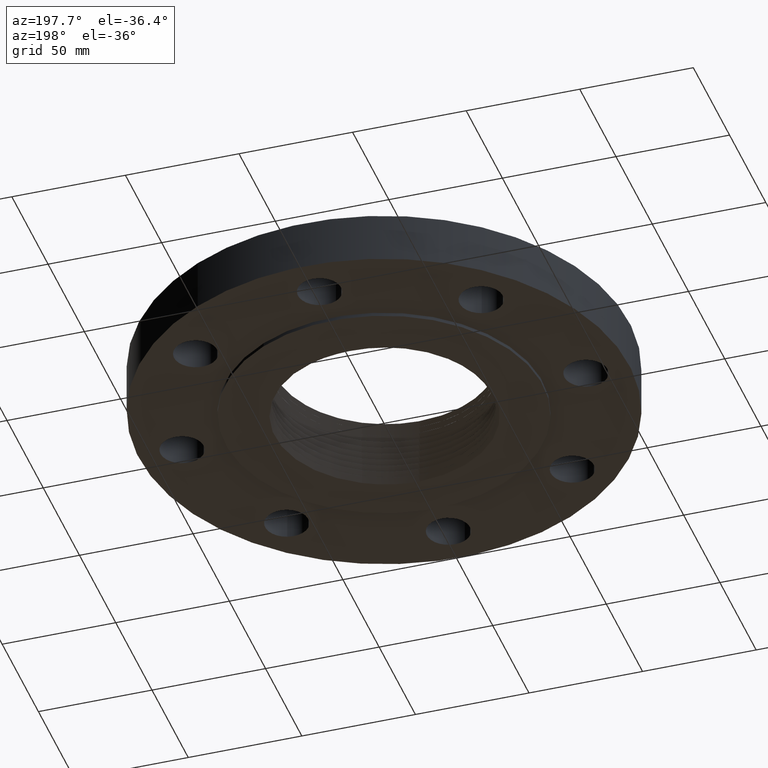
[diagram: clean part render]
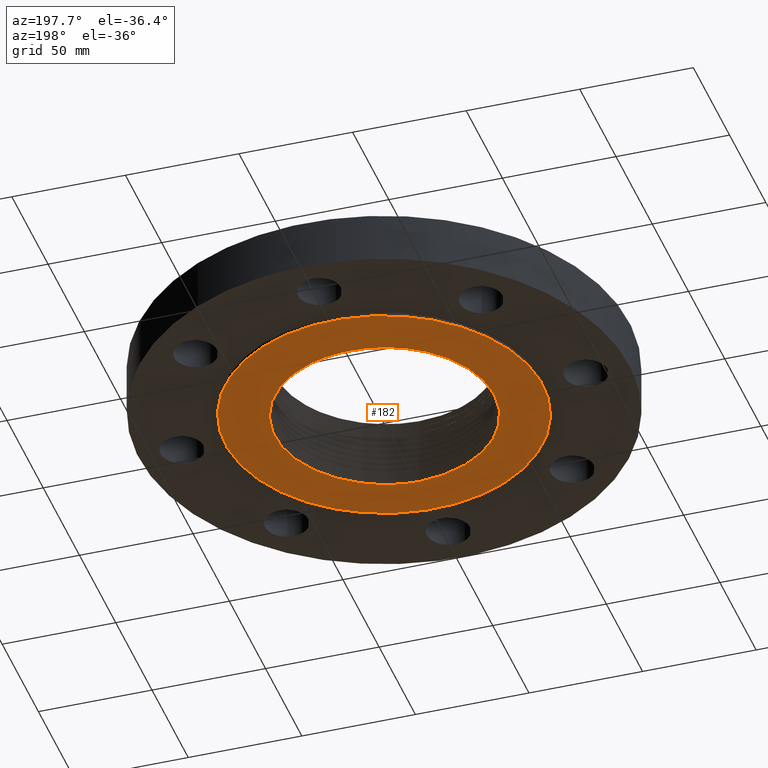
[diagram: same view with one face highlighted and labeled with its STEP entity id]
A machine part, auxiliary view. The second image highlights one B-rep face of the part: STEP entity #182.
In plain terms, the highlighted planar face has unit normal (0, 0, -1).
Its self-contained STEP definition (entity closure, byte-faithful):
#38=AXIS2_PLACEMENT_3D('Plane Axis2P3D',#35,#36,#37) ;
#42=AXIS2_PLACEMENT_3D('Circle Axis2P3D',#40,#41,$) ;
#51=AXIS2_PLACEMENT_3D('Circle Axis2P3D',#49,#50,$) ;
#170=AXIS2_PLACEMENT_3D('Circle Axis2P3D',#168,#169,$) ;
#35=CARTESIAN_POINT('Axis2P3D Location',(0.,0.,-0.0625000000003)) ;
#40=CARTESIAN_POINT('Axis2P3D Location',(0.,0.,-0.0625000000003)) ;
#44=CARTESIAN_POINT('Vertex',(1.31842023117,2.41335204521,-0.0625000000002)) ;
#46=CARTESIAN_POINT('Vertex',(-1.31842023117,-2.41335204521,-0.0625000000002)) ;
#49=CARTESIAN_POINT('Axis2P3D Location',(0.,0.,-0.0625000000003)) ;
#59=CARTESIAN_POINT('Control Point',(0.0632607786047,1.85358153076,-0.0625000000003)) ;
#60=CARTESIAN_POINT('Control Point',(0.0506204660169,1.85422008428,-0.0625000000003)) ;
#61=CARTESIAN_POINT('Control Point',(0.0379740254995,1.85475087487,-0.0625000000003)) ;
#62=CARTESIAN_POINT('Control Point',(0.0253234245955,1.85517378517,-0.0625000000003)) ;
#63=CARTESIAN_POINT('Control Point',(0.0126704092793,1.85548873648,-0.0625000000003)) ;
#64=CARTESIAN_POINT('Control Point',(1.47429189867E-005,1.8556957854,-0.0625000000003)) ;
#65=CARTESIAN_POINT('Vertex',(0.0632607874348,1.85358164722,-0.0625000000019)) ;
#67=CARTESIAN_POINT('Vertex',(1.4742918988E-005,1.8556957854,-0.0625000000002)) ;
#71=CARTESIAN_POINT('Control Point',(-0.896931056406,1.64184729013,-0.0625000000003)) ;
#72=CARTESIAN_POINT('Control Point',(-0.764548019765,1.7114038071,-0.0625000000003)) ;
#73=CARTESIAN_POINT('Control Point',(-0.625320338015,1.76767548598,-0.0625000000003)) ;
#74=CARTESIAN_POINT('Control Point',(-0.481016176806,1.8097492435,-0.0625000000003)) ;
#75=CARTESIAN_POINT('Control Point',(-0.296941806607,1.84386266499,-0.0625000000003)) ;
#76=CARTESIAN_POINT('Control Point',(-0.111115404837,1.85474103152,-0.0625000000003)) ;
#77=CARTESIAN_POINT('Control Point',(-0.0740697694716,1.85598362024,-0.0625000000003)) ;
#78=CARTESIAN_POINT('Control Point',(-0.0370161138172,1.85630161675,-0.0625000000003)) ;
#79=CARTESIAN_POINT('Control Point',(1.4742918988E-005,1.8556957854,-0.0625000000003)) ;
#80=CARTESIAN_POINT('Vertex',(-0.896931056406,1.64184729013,-0.0625000000003)) ;
#84=CARTESIAN_POINT('Control Point',(-9.81546498393E-007,-1.95102691485,-0.0625000000003)) ;
#85=CARTESIAN_POINT('Control Point',(-0.144899732012,-1.94877319796,-0.0625000000003)) ;
#86=CARTESIAN_POINT('Control Point',(-0.289489346667,-1.93306611471,-0.0625000000003)) ;
#87=CARTESIAN_POINT('Control Point',(-0.432068329358,-1.90395026885,-0.0625000000003)) ;
#88=CARTESIAN_POINT('Control Point',(-0.709974906196,-1.81959828226,-0.0625000000003)) ;
#89=CARTESIAN_POINT('Control Point',(-0.967042493856,-1.68564018439,-0.0625000000003)) ;
#90=CARTESIAN_POINT('Control Point',(-1.08887725901,-1.60687675346,-0.0625000000003)) ;
#91=CARTESIAN_POINT('Control Point',(-1.31628192839,-1.42768136032,-0.0625000000003)) ;
#92=CARTESIAN_POINT('Control Point',(-1.50629714788,-1.20982672786,-0.0625000000003)) ;
#93=CARTESIAN_POINT('Control Point',(-1.59078199279,-1.09236279772,-0.0625000000003)) ;
#94=CARTESIAN_POINT('Control Point',(-1.73663357629,-0.843269877278,-0.0625000000003)) ;
#95=CARTESIAN_POINT('Control Point',(-1.83358551987,-0.571721099875,-0.0625000000003)) ;
#96=CARTESIAN_POINT('Control Point',(-1.86912291317,-0.431897555589,-0.0625000000003)) ;
#97=CARTESIAN_POINT('Control Point',(-1.90240065322,-0.218540993332,-0.0625000000003)) ;
#98=CARTESIAN_POINT('Control Point',(-1.90543595937,-0.00349225267737,-0.0625000000003)) ;
#99=CARTESIAN_POINT('Control Point',(-1.90307729218,0.06813648669,-0.0625000000003)) ;
#100=CARTESIAN_POINT('Control Point',(-1.8902067982,0.228739809458,-0.0625000000003)) ;
#101=CARTESIAN_POINT('Control Point',(-1.86045998643,0.387056507266,-0.0625000000003)) ;
#102=CARTESIAN_POINT('Control Point',(-1.83878328759,0.473883752635,-0.0625000000003)) ;
#103=CARTESIAN_POINT('Control Point',(-1.76930054882,0.695684657168,-0.0625000000003)) ;
#104=CARTESIAN_POINT('Control Point',(-1.66670917657,0.904611914358,-0.0625000000003)) ;
#105=CARTESIAN_POINT('Control Point',(-1.59164643411,1.02673946851,-0.0625000000003)) ;
#106=CARTESIAN_POINT('Control Point',(-1.4267066168,1.24560886144,-0.0625000000003)) ;
#107=CARTESIAN_POINT('Control Point',(-1.22554331261,1.43089261151,-0.0625000000003)) ;
#108=CARTESIAN_POINT('Control Point',(-1.12195939769,1.51085200655,-0.0625000000003)) ;
#109=CARTESIAN_POINT('Control Point',(-1.0120320473,1.58137108214,-0.0625000000003)) ;
#110=CARTESIAN_POINT('Control Point',(-0.896931056406,1.64184729013,-0.0625000000003)) ;
#111=CARTESIAN_POINT('Vertex',(-9.81546498813E-007,-1.95102691485,-0.0625000000003)) ;
#115=CARTESIAN_POINT('Control Point',(0.153187666978,-1.94739322789,-0.0625000000003)) ;
#116=CARTESIAN_POINT('Control Point',(0.122585376618,-1.94932275274,-0.0625000000003)) ;
#117=CARTESIAN_POINT('Control Point',(0.0919496282922,-1.95065146428,-0.0625000000003)) ;
#118=CARTESIAN_POINT('Control Point',(0.0612961425091,-1.95137847332,-0.0625000000003)) ;
#119=CARTESIAN_POINT('Control Point',(0.0306406830642,-1.95150350722,-0.0625000000003)) ;
#120=CARTESIAN_POINT('Control Point',(-9.81546498708E-007,-1.95102691485,-0.0625000000003)) ;
#121=CARTESIAN_POINT('Vertex',(0.153187666978,-1.94739322789,-0.0625000000003)) ;
#125=CARTESIAN_POINT('Control Point',(0.153187666978,-1.94739322789,-0.0625000000003)) ;
#126=CARTESIAN_POINT('Control Point',(0.308610341315,-1.93247857892,-0.0625000000003)) ;
#127=CARTESIAN_POINT('Control Point',(0.462409210513,-1.9020457018,-0.0625000000003)) ;
#128=CARTESIAN_POINT('Control Point',(0.612522522989,-1.8563082528,-0.0625000000003)) ;
#129=CARTESIAN_POINT('Control Point',(0.764551542172,-1.79270750862,-0.0625000000003)) ;
#130=CARTESIAN_POINT('Control Point',(0.908215172206,-1.7139661458,-0.0625000000003)) ;
#131=CARTESIAN_POINT('Control Point',(0.9154113627,-1.70997216266,-0.0625000000003)) ;
#132=CARTESIAN_POINT('Control Point',(0.922585556536,-1.70594046069,-0.0625000000003)) ;
#133=CARTESIAN_POINT('Control Point',(0.929737830056,-1.70187100542,-0.0625000000003)) ;
#134=CARTESIAN_POINT('Vertex',(0.929737830056,-1.70187100542,-0.0625000000003)) ;
#138=CARTESIAN_POINT('Control Point',(0.929737830056,-1.70187100542,-0.0625000000003)) ;
#139=CARTESIAN_POINT('Control Point',(1.05529292144,-1.63043346494,-0.0625000000003)) ;
#140=CARTESIAN_POINT('Control Point',(1.17409424409,-1.54736101156,-0.0625000000003)) ;
#141=CARTESIAN_POINT('Control Point',(1.28468984448,-1.45349558198,-0.0625000000003)) ;
#142=CARTESIAN_POINT('Control Point',(1.48690692047,-1.24640300447,-0.0625000000003)) ;
#143=CARTESIAN_POINT('Control Point',(1.64699850908,-1.00584205685,-0.0625000000003)) ;
#144=CARTESIAN_POINT('Control Point',(1.71547985495,-0.878490154047,-0.0625000000003)) ;
#145=CARTESIAN_POINT('Control Point',(1.79964605906,-0.679140077109,-0.0625000000003)) ;
#146=CARTESIAN_POINT('Control Point',(1.85487501982,-0.470908621865,-0.0625000000003)) ;
#147=CARTESIAN_POINT('Control Point',(1.87000715148,-0.400714830005,-0.0625000000003)) ;
#148=CARTESIAN_POINT('Control Point',(1.89067844138,-0.276863173464,-0.0625000000003)) ;
#149=CARTESIAN_POINT('Control Point',(1.90111126859,-0.15188407389,-0.0625000000003)) ;
#150=CARTESIAN_POINT('Control Point',(1.90369219673,-0.0982023635796,-0.0625000000003)) ;
#151=CARTESIAN_POINT('Control Point',(1.90621451388,0.098789670091,-0.0625000000003)) ;
#152=CARTESIAN_POINT('Control Point',(1.88331004216,0.294931273853,-0.0625000000003)) ;
#153=CARTESIAN_POINT('Control Point',(1.85325888313,0.435444985333,-0.0625000000003)) ;
#154=CARTESIAN_POINT('Control Point',(1.76711467558,0.708953702396,-0.0625000000003)) ;
#155=CARTESIAN_POINT('Control Point',(1.63164441082,0.960997831695,-0.0625000000003)) ;
#156=CARTESIAN_POINT('Control Point',(1.55221112593,1.08017331371,-0.0625000000003)) ;
#157=CARTESIAN_POINT('Control Point',(1.37194860234,1.30189709581,-0.0625000000003)) ;
#158=CARTESIAN_POINT('Control Point',(1.15367510686,1.48557442312,-0.0625000000003)) ;
#159=CARTESIAN_POINT('Control Point',(1.03621112128,1.56671973471,-0.0625000000003)) ;
#160=CARTESIAN_POINT('Control Point',(0.809245566261,1.6934970269,-0.0625000000003)) ;
#161=CARTESIAN_POINT('Control Point',(0.564482729071,1.77910613769,-0.0625000000003)) ;
#162=CARTESIAN_POINT('Control Point',(0.451067552383,1.80901116539,-0.0625000000003)) ;
#163=CARTESIAN_POINT('Control Point',(0.335829408383,1.82987268873,-0.0625000000003)) ;
#164=CARTESIAN_POINT('Control Point',(0.219737003932,1.84159782936,-0.0625000000003)) ;
#165=CARTESIAN_POINT('Vertex',(0.219737005556,1.84159781128,-0.0625000000046)) ;
#168=CARTESIAN_POINT('Axis2P3D Location',(5.59482469102E-016,-1.39870617276E-016,-0.0625000000003)) ;
#36=DIRECTION('Axis2P3D Direction',(0.,0.,-0.0393700787402)) ;
#37=DIRECTION('Axis2P3D XDirection',(0.0393700787402,0.,0.)) ;
#41=DIRECTION('Axis2P3D Direction',(0.,0.,-0.0393700787402)) ;
#50=DIRECTION('Axis2P3D Direction',(0.,0.,-0.0393700787402)) ;
#169=DIRECTION('Axis2P3D Direction',(0.,0.,-0.0393700787402)) ;
#55=ORIENTED_EDGE('',*,*,#48,.T.) ;
#56=ORIENTED_EDGE('',*,*,#53,.T.) ;
#174=ORIENTED_EDGE('',*,*,#69,.T.) ;
#175=ORIENTED_EDGE('',*,*,#82,.F.) ;
#176=ORIENTED_EDGE('',*,*,#113,.F.) ;
#177=ORIENTED_EDGE('',*,*,#123,.F.) ;
#178=ORIENTED_EDGE('',*,*,#136,.T.) ;
#179=ORIENTED_EDGE('',*,*,#167,.T.) ;
#180=ORIENTED_EDGE('',*,*,#172,.F.) ;
#181=FACE_BOUND('',#173,.T.) ;
#182=ADVANCED_FACE('PartBody',(#57,#181),#39,.T.) ;
#58=B_SPLINE_CURVE_WITH_KNOTS('',5,(#59,#60,#61,#62,#63,#64),.UNSPECIFIED.,.F.,.U.,(6,6),(2.89183631495,5.19386756984),.UNSPECIFIED.) ;
#70=B_SPLINE_CURVE_WITH_KNOTS('',5,(#71,#72,#73,#74,#75,#76,#77,#78,#79),.UNSPECIFIED.,.F.,.U.,(6,3,6),(0.,27.0874730725,33.8232850936),.UNSPECIFIED.) ;
#83=B_SPLINE_CURVE_WITH_KNOTS('',5,(#84,#85,#86,#87,#88,#89,#90,#91,#92,#93,#94,#95,#96,#97,#98,#99,#100,#101,#102,#103,#104,#105,#106,#107,#108,#109,#110),.UNSPECIFIED.,.F.,.U.,(6,3,3,3,3,3,3,3,6),(0.,25.7175618794,51.4536968083,77.2002405456,102.927217968,115.782463214,131.846761018,157.551407703,181.102725707),.UNSPECIFIED.) ;
#114=B_SPLINE_CURVE_WITH_KNOTS('',5,(#115,#116,#117,#118,#119,#120),.UNSPECIFIED.,.F.,.U.,(6,6),(0.,5.43847965005),.UNSPECIFIED.) ;
#124=B_SPLINE_CURVE_WITH_KNOTS('',5,(#125,#126,#127,#128,#129,#130,#131,#132,#133),.UNSPECIFIED.,.F.,.U.,(6,3,6),(0.,27.6929644158,29.157763053),.UNSPECIFIED.) ;
#137=B_SPLINE_CURVE_WITH_KNOTS('',5,(#138,#139,#140,#141,#142,#143,#144,#145,#146,#147,#148,#149,#150,#151,#152,#153,#154,#155,#156,#157,#158,#159,#160,#161,#162,#163,#164),.UNSPECIFIED.,.F.,.U.,(6,3,3,3,3,3,3,3,6),(0.,25.7139112862,51.4315880794,64.2896741279,73.9332373283,99.6615171775,125.415193712,151.173697485,172.426163432),.UNSPECIFIED.) ;
#43=CIRCLE('generated circle',#42,2.75000000001) ;
#52=CIRCLE('generated circle',#51,2.75000000001) ;
#171=CIRCLE('generated circle',#170,1.85466084504) ;
#48=EDGE_CURVE('',#45,#47,#43,.T.) ;
#53=EDGE_CURVE('',#47,#45,#52,.T.) ;
#69=EDGE_CURVE('',#66,#68,#58,.T.) ;
#82=EDGE_CURVE('',#81,#68,#70,.T.) ;
#113=EDGE_CURVE('',#112,#81,#83,.T.) ;
#123=EDGE_CURVE('',#122,#112,#114,.T.) ;
#136=EDGE_CURVE('',#122,#135,#124,.T.) ;
#167=EDGE_CURVE('',#135,#166,#137,.T.) ;
#172=EDGE_CURVE('',#66,#166,#171,.T.) ;
#54=EDGE_LOOP('',(#55,#56)) ;
#173=EDGE_LOOP('',(#174,#175,#176,#177,#178,#179,#180)) ;
#57=FACE_OUTER_BOUND('',#54,.T.) ;
#39=PLANE('',#38) ;
#45=VERTEX_POINT('',#44) ;
#47=VERTEX_POINT('',#46) ;
#66=VERTEX_POINT('',#65) ;
#68=VERTEX_POINT('',#67) ;
#81=VERTEX_POINT('',#80) ;
#112=VERTEX_POINT('',#111) ;
#122=VERTEX_POINT('',#121) ;
#135=VERTEX_POINT('',#134) ;
#166=VERTEX_POINT('',#165) ;